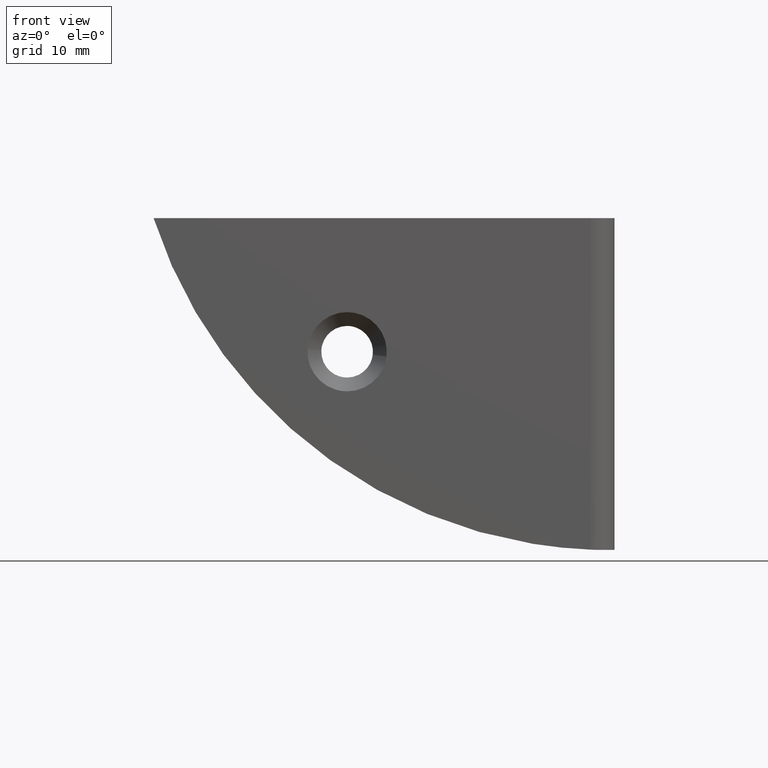
[diagram: clean part render]
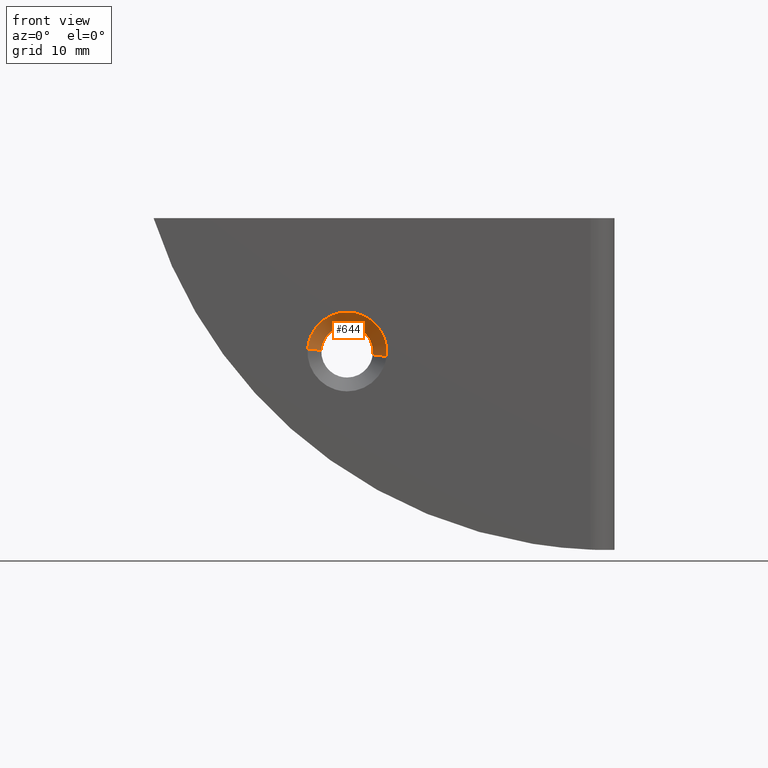
[diagram: same view with one face highlighted and labeled with its STEP entity id]
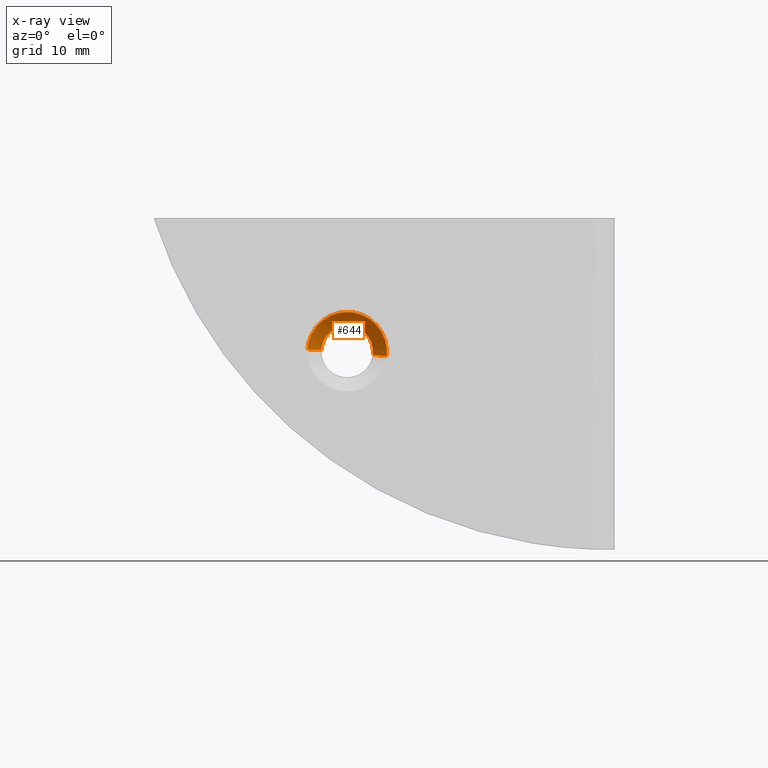
[diagram: x-ray of the same camera — body ghosted, the highlighted face saturated]
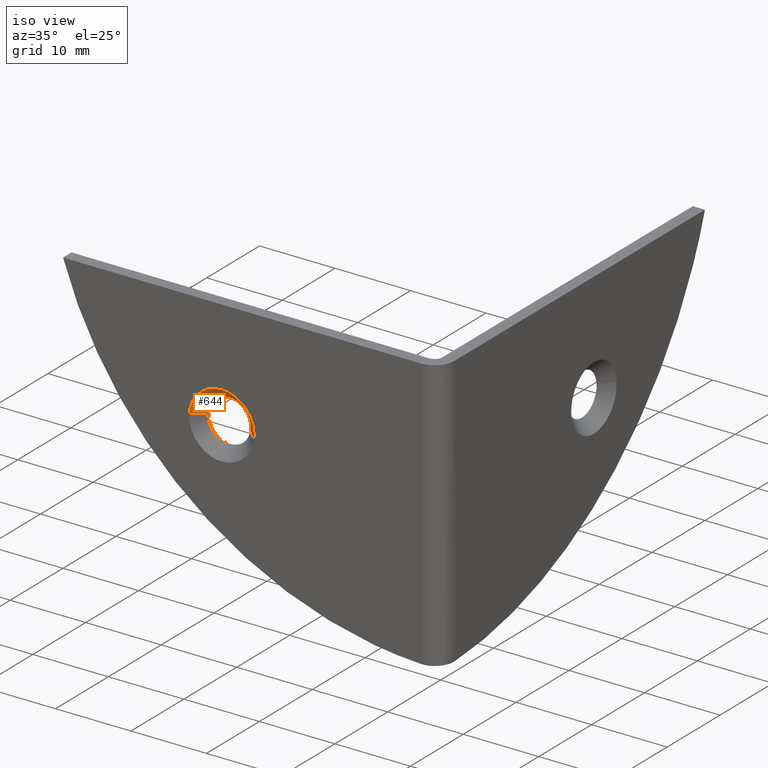
[diagram: same view with one face highlighted and labeled with its STEP entity id]
A machine part, front view. The second image highlights one B-rep face of the part: STEP entity #644.
The next image is the same camera in x-ray: the body ghosted, the highlighted face saturated — about 0% of this face is hidden behind the body in this view.
A second angle (iso view) of the same face is appended — the face is thin or edge-on in the first view.
In plain terms, the highlighted face is a freeform B-spline surface patch.
Its self-contained STEP definition (entity closure, byte-faithful):
#390=CARTESIAN_POINT('',(-28.015469671701471,1.500000000000000,24.121202020573840));
#391=VERTEX_POINT('',#390);
#392=CARTESIAN_POINT('',(-29.0,1.500000000000000,24.300000000000001));
#393=VERTEX_POINT('',#392);
#394=CARTESIAN_POINT('',(-28.015469671701474,1.500000000000000,24.121202020573843));
#395=CARTESIAN_POINT('',(-28.491499319010725,1.500000000000000,24.300000000000008));
#396=CARTESIAN_POINT('',(-29.0,1.500000000000000,24.300000000000001));
#404=(BOUNDED_CURVE()B_SPLINE_CURVE(2,(#394,#395,#396),.UNSPECIFIED.,.F.,.U.)B_SPLINE_CURVE_WITH_KNOTS((3,3),(0.440284170898653,0.500000000000000),.UNSPECIFIED.)CURVE()GEOMETRIC_REPRESENTATION_ITEM()RATIONAL_B_SPLINE_CURVE((0.893499554635451,0.930038554401569,1.0))REPRESENTATION_ITEM(''));
#405=EDGE_CURVE('',#391,#393,#404,.T.);
#407=CARTESIAN_POINT('',(-31.794777435590721,1.499999999964779,21.670935910830810));
#408=VERTEX_POINT('',#407);
#409=CARTESIAN_POINT('',(-29.0,1.500000000000000,24.300000000000001));
#410=CARTESIAN_POINT('',(-31.633976986836903,1.500000000000000,24.299999999999994));
#411=CARTESIAN_POINT('',(-31.794777435590728,1.499999999964779,21.670935910830803));
#419=(BOUNDED_CURVE()B_SPLINE_CURVE(2,(#409,#410,#411),.UNSPECIFIED.,.F.,.U.)B_SPLINE_CURVE_WITH_KNOTS((3,3),(0.500000000000000,0.739332962209338),.UNSPECIFIED.)CURVE()GEOMETRIC_REPRESENTATION_ITEM()RATIONAL_B_SPLINE_CURVE((1.0,0.719603993321395,0.976072041603268))REPRESENTATION_ITEM(''));
#420=EDGE_CURVE('',#393,#408,#419,.T.);
#489=CARTESIAN_POINT('',(-26.219573326180790,1.499999999984186,21.169504142834970));
#490=VERTEX_POINT('',#489);
#491=CARTESIAN_POINT('',(-26.219573326180793,1.499999999984186,21.169504142834967));
#492=CARTESIAN_POINT('',(-26.200000000000003,1.500000000000000,21.334172464849097));
#493=CARTESIAN_POINT('',(-26.199999999999999,1.500000000000000,21.500000000000000));
#494=CARTESIAN_POINT('',(-26.200000000000003,1.500000000000000,23.439306867941006));
#495=CARTESIAN_POINT('',(-28.015469671701467,1.500000000000000,24.121202020573843));
#503=(BOUNDED_CURVE()B_SPLINE_CURVE(2,(#491,#492,#493,#494,#495),.UNSPECIFIED.,.F.,.U.)B_SPLINE_CURVE_WITH_KNOTS((3,2,3),(0.229562473500541,0.250000000000000,0.440284170898653),.UNSPECIFIED.)CURVE()GEOMETRIC_REPRESENTATION_ITEM()RATIONAL_B_SPLINE_CURVE((0.956026754158283,0.976055948315953,1.0,0.777068226784978,0.893499554635452))REPRESENTATION_ITEM(''));
#504=EDGE_CURVE('',#490,#391,#503,.T.);
#573=CARTESIAN_POINT('',(-26.256811183420364,1.537500000000001,21.173930426760705));
#574=CARTESIAN_POINT('',(-26.247479212323224,1.537500000000000,21.252439312137579));
#575=CARTESIAN_POINT('',(-26.242652619359589,1.537500000000000,21.331353409534959));
#576=CARTESIAN_POINT('',(-26.074006028894548,1.537500000000000,24.088700790175366));
#577=CARTESIAN_POINT('',(-28.831353409534959,1.537500000000000,24.257347380640422));
#578=CARTESIAN_POINT('',(-31.588700790175370,1.537500000000000,24.425993971105463));
#579=CARTESIAN_POINT('',(-31.757347380640422,1.537500000000000,21.668646590465048));
#580=CARTESIAN_POINT('',(-24.691890232966639,-0.038437499999996,20.987915850081325));
#581=CARTESIAN_POINT('',(-24.677234604602194,-0.038437499999996,21.111212100724668));
#582=CARTESIAN_POINT('',(-24.669654560471631,-0.038437499999996,21.235144726761739));
#583=CARTESIAN_POINT('',(-24.404799287233374,-0.038437499999996,25.565490166290115));
#584=CARTESIAN_POINT('',(-28.735144726761739,-0.038437499999996,25.830345439528369));
#585=CARTESIAN_POINT('',(-33.065490166290111,-0.038437499999996,26.095200712766626));
#586=CARTESIAN_POINT('',(-33.330345439528372,-0.038437499999996,21.764855273238261));
#594=(BOUNDED_SURFACE()B_SPLINE_SURFACE(2,1,((#573,#580),(#574,#581),(#575,#582),(#576,#583),(#577,#584),(#578,#585),(#579,#586)),.UNSPECIFIED.,.F.,.F.,.U.)B_SPLINE_SURFACE_WITH_KNOTS((3,2,2,3),(2,2),(0.0,0.287526344321284,7.475684952353384,14.663843560385480),(0.0,2.228712185952343),.UNSPECIFIED.)GEOMETRIC_REPRESENTATION_ITEM()RATIONAL_B_SPLINE_SURFACE(((0.977505800795127,0.977505800795127),(0.988284271247462,0.988284271247462),(1.0,1.0),(0.707106781186548,0.707106781186548),(1.0,1.0),(0.707106781186548,0.707106781186548),(1.0,1.0)))REPRESENTATION_ITEM('')SURFACE());
#595=ORIENTED_EDGE('',*,*,#504,.F.);
#596=CARTESIAN_POINT('',(-24.730059036636160,-1.071119E-012,20.992452790967491));
#597=VERTEX_POINT('',#596);
#598=CARTESIAN_POINT('',(-26.219573326180790,1.499999999984186,21.169504142834970));
#599=CARTESIAN_POINT('',(-24.730059036636160,-1.071119E-012,20.992452790967491));
#600=QUASI_UNIFORM_CURVE('',1,(#598,#599),.UNSPECIFIED.,.F.,.U.);
#601=EDGE_CURVE('',#490,#597,#600,.T.);
#602=ORIENTED_EDGE('',*,*,#601,.T.);
#603=CARTESIAN_POINT('',(-29.0,4.077939E-015,25.800000000000001));
#604=VERTEX_POINT('',#603);
#605=CARTESIAN_POINT('',(-24.730059036636160,-1.071119E-012,20.992452790967494));
#606=CARTESIAN_POINT('',(-24.700000000000006,4.077939E-015,21.245336285488381));
#607=CARTESIAN_POINT('',(-24.699999999999999,4.077939E-015,21.500000000000000));
#608=CARTESIAN_POINT('',(-24.699999999999999,4.077939E-015,25.799999999999990));
#609=CARTESIAN_POINT('',(-29.0,4.077939E-015,25.800000000000001));
#617=(BOUNDED_CURVE()B_SPLINE_CURVE(2,(#605,#606,#607,#608,#609),.UNSPECIFIED.,.F.,.U.)B_SPLINE_CURVE_WITH_KNOTS((3,2,3),(0.229562473514986,0.250000000000000,0.500000000000000),.UNSPECIFIED.)CURVE()GEOMETRIC_REPRESENTATION_ITEM()RATIONAL_B_SPLINE_CURVE((0.956026754186595,0.976055948332876,1.0,0.707106781186547,1.0))REPRESENTATION_ITEM(''));
#618=EDGE_CURVE('',#597,#604,#617,.T.);
#619=ORIENTED_EDGE('',*,*,#618,.T.);
#620=CARTESIAN_POINT('',(-33.291979633229523,-2.877172E-011,21.762508720217951));
#621=VERTEX_POINT('',#620);
#622=CARTESIAN_POINT('',(-29.0,4.077939E-015,25.800000000000001));
#623=CARTESIAN_POINT('',(-33.045036087286007,4.077939E-015,25.800000000000004));
#624=CARTESIAN_POINT('',(-33.291979633229523,-2.877172E-011,21.762508720217951));
#632=(BOUNDED_CURVE()B_SPLINE_CURVE(2,(#622,#623,#624),.UNSPECIFIED.,.F.,.U.)B_SPLINE_CURVE_WITH_KNOTS((3,3),(0.500000000000000,0.739332962224577),.UNSPECIFIED.)CURVE()GEOMETRIC_REPRESENTATION_ITEM()RATIONAL_B_SPLINE_CURVE((1.0,0.719603993303541,0.976072041635928))REPRESENTATION_ITEM(''));
#633=EDGE_CURVE('',#604,#621,#632,.T.);
#634=ORIENTED_EDGE('',*,*,#633,.T.);
#635=CARTESIAN_POINT('',(-31.794777435590721,1.499999999964779,21.670935910830810));
#636=CARTESIAN_POINT('',(-33.291979633229523,-2.877172E-011,21.762508720217951));
#637=QUASI_UNIFORM_CURVE('',1,(#635,#636),.UNSPECIFIED.,.F.,.U.);
#638=EDGE_CURVE('',#408,#621,#637,.T.);
#639=ORIENTED_EDGE('',*,*,#638,.F.);
#640=ORIENTED_EDGE('',*,*,#420,.F.);
#641=ORIENTED_EDGE('',*,*,#405,.F.);
#642=EDGE_LOOP('',(#595,#602,#619,#634,#639,#640,#641));
#643=FACE_OUTER_BOUND('',#642,.T.);
#644=ADVANCED_FACE('',(#643),#594,.F.);